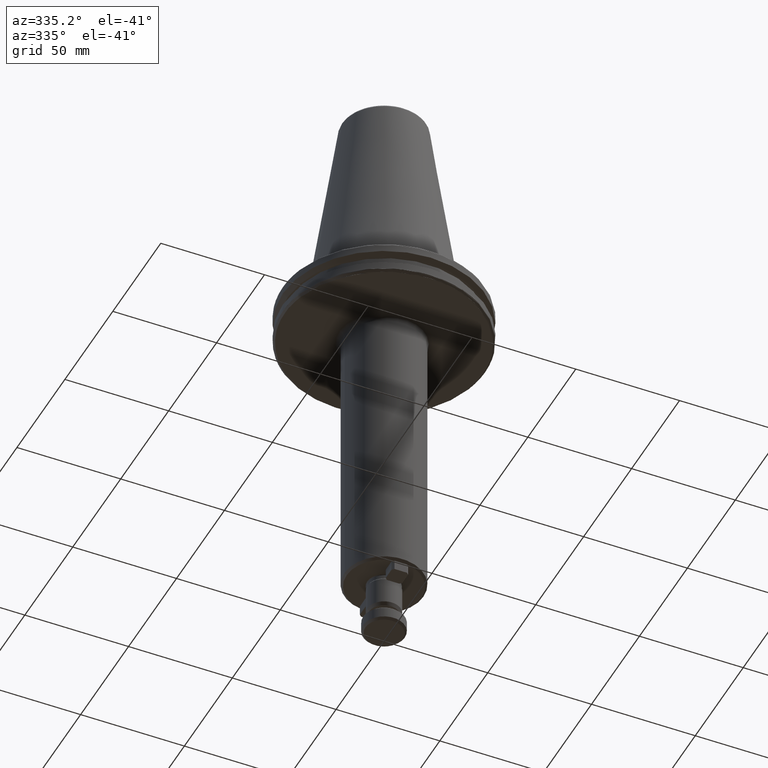
[diagram: clean part render]
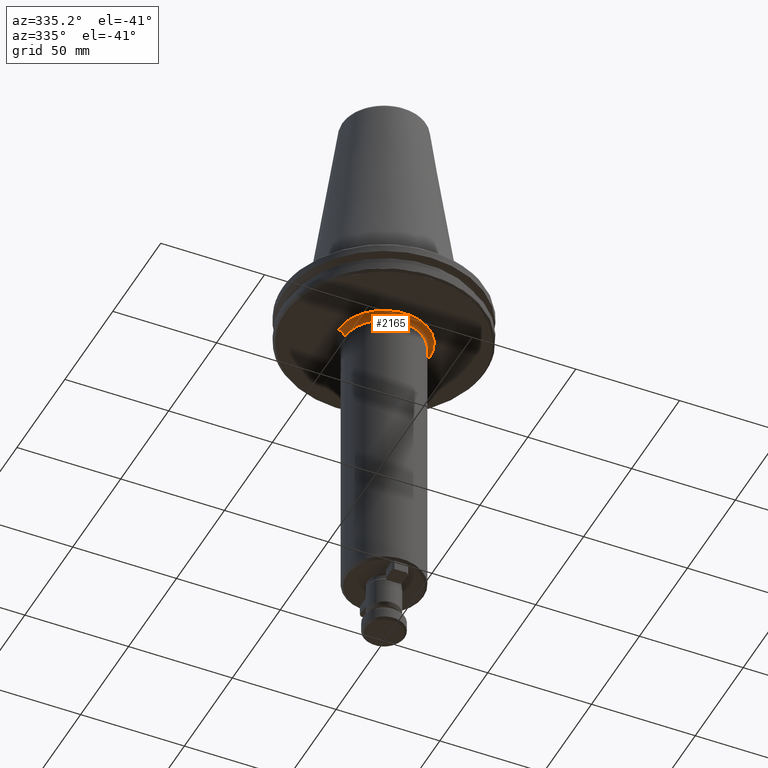
[diagram: same view with one face highlighted and labeled with its STEP entity id]
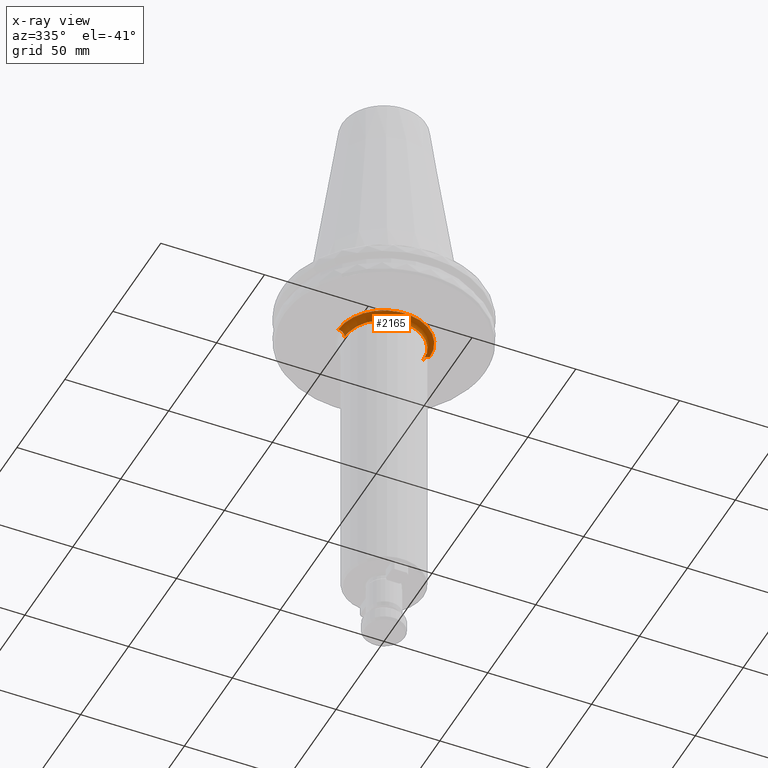
[diagram: x-ray of the same camera — body ghosted, the highlighted face saturated]
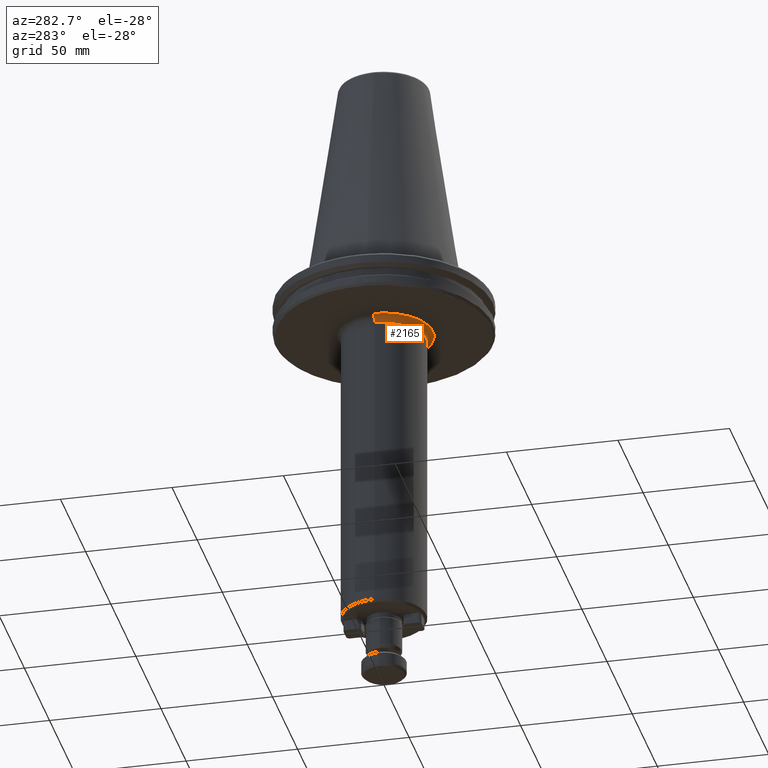
[diagram: same view with one face highlighted and labeled with its STEP entity id]
A machine part, auxiliary view. The second image highlights one B-rep face of the part: STEP entity #2165.
The next image is the same camera in x-ray: the body ghosted, the highlighted face saturated — about 0% of this face is hidden behind the body in this view.
A second angle (auxiliary view) of the same face is appended — the face is thin or edge-on in the first view.
In plain terms, the highlighted toroidal blend (fillet) surface has major radius 22 mm and minor (blend) radius 3 mm.
Its self-contained STEP definition (entity closure, byte-faithful):
#93 = CIRCLE ( 'NONE', #979, 2.999999999999999100 ) ;
#145 = CIRCLE ( 'NONE', #1196, 2.999999999999999100 ) ;
#392 = AXIS2_PLACEMENT_3D ( 'NONE', #1125, #2627, #545 ) ;
#418 = VERTEX_POINT ( 'NONE', #510 ) ;
#510 = CARTESIAN_POINT ( 'NONE',  ( 19.00000000000000000, 0.0000000000000000000, -22.10000000000000500 ) ) ;
#545 = DIRECTION ( 'NONE',  ( -1.000000000000000000, 0.0000000000000000000, 0.0000000000000000000 ) ) ;
#597 = ORIENTED_EDGE ( 'NONE', *, *, #2961, .F. ) ;
#685 = ORIENTED_EDGE ( 'NONE', *, *, #1291, .F. ) ;
#706 = AXIS2_PLACEMENT_3D ( 'NONE', #2885, #1080, #3211 ) ;
#737 = VERTEX_POINT ( 'NONE', #2405 ) ;
#979 = AXIS2_PLACEMENT_3D ( 'NONE', #1603, #3746, #1895 ) ;
#1039 = EDGE_CURVE ( 'NONE', #737, #1814, #93, .T. ) ;
#1080 = DIRECTION ( 'NONE',  ( -0.0000000000000000000, -0.0000000000000000000, 1.000000000000000000 ) ) ;
#1125 = CARTESIAN_POINT ( 'NONE',  ( 0.0000000000000000000, 0.0000000000000000000, -22.10000000000000500 ) ) ;
#1192 = CARTESIAN_POINT ( 'NONE',  ( 0.0000000000000000000, 0.0000000000000000000, -22.10000000000000500 ) ) ;
#1196 = AXIS2_PLACEMENT_3D ( 'NONE', #3173, #1353, #3487 ) ;
#1291 = EDGE_CURVE ( 'NONE', #1814, #2254, #3030, .T. ) ;
#1353 = DIRECTION ( 'NONE',  ( -1.224646799147353200E-016, 1.000000000000000000, 0.0000000000000000000 ) ) ;
#1484 = DIRECTION ( 'NONE',  ( -1.000000000000000000, 0.0000000000000000000, 0.0000000000000000000 ) ) ;
#1603 = CARTESIAN_POINT ( 'NONE',  ( -22.00000000000000000, 0.0000000000000000000, -22.10000000000000500 ) ) ;
#1814 = VERTEX_POINT ( 'NONE', #3056 ) ;
#1895 = DIRECTION ( 'NONE',  ( 0.0000000000000000000, 0.0000000000000000000, -1.000000000000000000 ) ) ;
#2165 = ADVANCED_FACE ( 'NONE', ( #3254 ), #2622, .F. ) ;
#2254 = VERTEX_POINT ( 'NONE', #3911 ) ;
#2405 = CARTESIAN_POINT ( 'NONE',  ( -19.00000000000000000, 2.326828918379971000E-015, -22.10000000000000500 ) ) ;
#2488 = AXIS2_PLACEMENT_3D ( 'NONE', #1192, #3322, #1484 ) ;
#2555 = ORIENTED_EDGE ( 'NONE', *, *, #1039, .F. ) ;
#2622 = TOROIDAL_SURFACE ( 'NONE', #392, 22.00000000000000000, 2.999999999999999600 ) ;
#2627 = DIRECTION ( 'NONE',  ( 0.0000000000000000000, 0.0000000000000000000, -1.000000000000000000 ) ) ;
#2885 = CARTESIAN_POINT ( 'NONE',  ( 0.0000000000000000000, 0.0000000000000000000, -19.10000000000000500 ) ) ;
#2961 = EDGE_CURVE ( 'NONE', #418, #737, #3300, .T. ) ;
#3030 = CIRCLE ( 'NONE', #706, 22.00000000000000000 ) ;
#3056 = CARTESIAN_POINT ( 'NONE',  ( -22.00000000000000000, 0.0000000000000000000, -19.10000000000000500 ) ) ;
#3173 = CARTESIAN_POINT ( 'NONE',  ( 22.00000000000000000, 2.694222958124176800E-015, -22.10000000000000500 ) ) ;
#3183 = EDGE_LOOP ( 'NONE', ( #597, #3640, #685, #2555 ) ) ;
#3211 = DIRECTION ( 'NONE',  ( -1.000000000000000000, 0.0000000000000000000, 0.0000000000000000000 ) ) ;
#3254 = FACE_OUTER_BOUND ( 'NONE', #3183, .T. ) ;
#3300 = CIRCLE ( 'NONE', #2488, 19.00000000000000000 ) ;
#3322 = DIRECTION ( 'NONE',  ( 0.0000000000000000000, 0.0000000000000000000, -1.000000000000000000 ) ) ;
#3464 = EDGE_CURVE ( 'NONE', #418, #2254, #145, .T. ) ;
#3487 = DIRECTION ( 'NONE',  ( -1.000000000000000000, -1.224646799147353500E-016, 0.0000000000000000000 ) ) ;
#3640 = ORIENTED_EDGE ( 'NONE', *, *, #3464, .T. ) ;
#3746 = DIRECTION ( 'NONE',  ( -0.0000000000000000000, -1.000000000000000000, -0.0000000000000000000 ) ) ;
#3911 = CARTESIAN_POINT ( 'NONE',  ( 22.00000000000000000, 2.694222958124176800E-015, -19.10000000000000500 ) ) ;